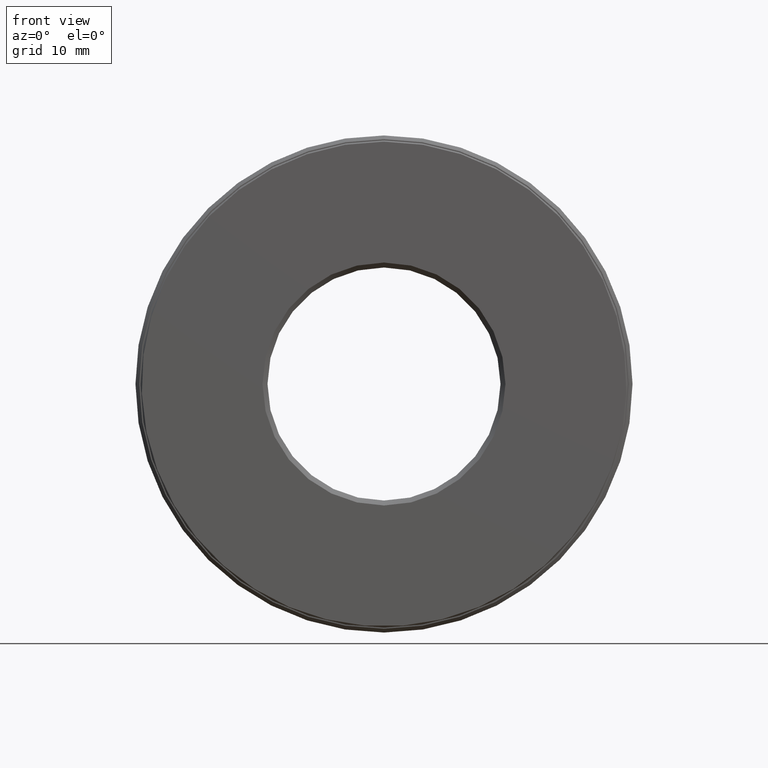
[diagram: clean part render]
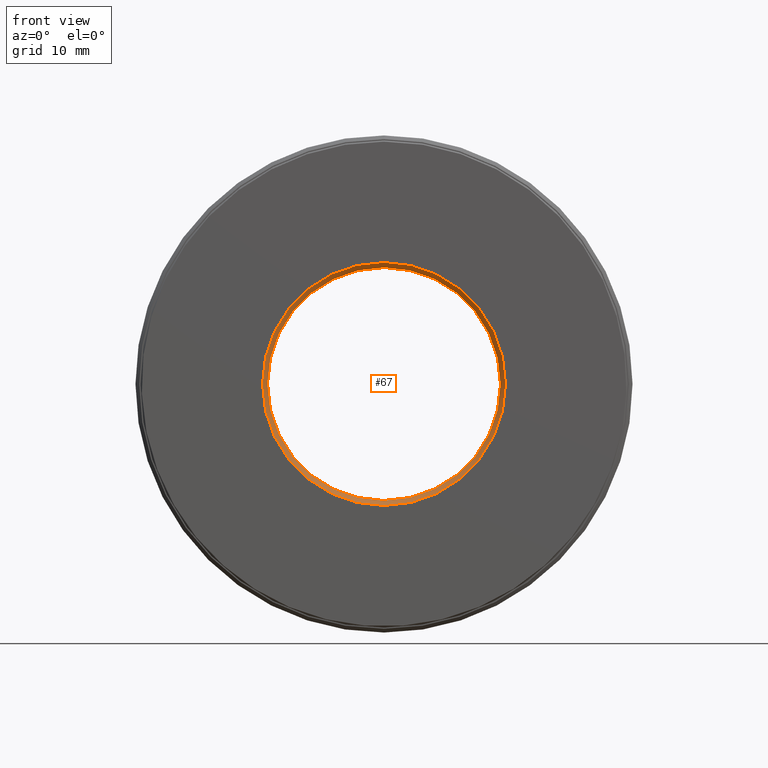
[diagram: same view with one face highlighted and labeled with its STEP entity id]
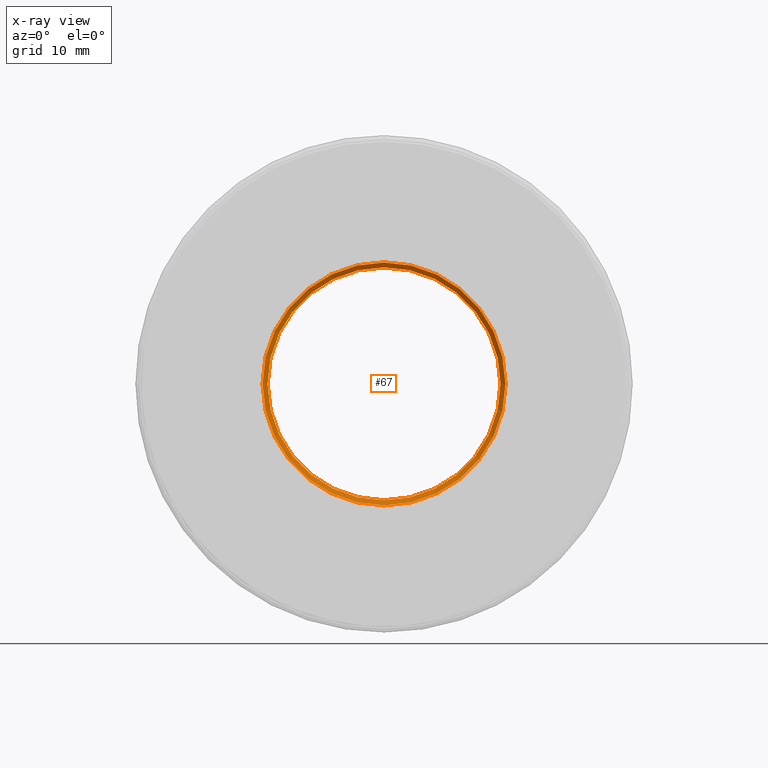
[diagram: x-ray of the same camera — body ghosted, the highlighted face saturated]
A machine part, front view. The second image highlights one B-rep face of the part: STEP entity #67.
The next image is the same camera in x-ray: the body ghosted, the highlighted face saturated — about 0% of this face is hidden behind the body in this view.
In plain terms, the highlighted conical surface has half-angle 45 deg.
Its self-contained STEP definition (entity closure, byte-faithful):
#49 = AXIS2_PLACEMENT_3D ( 'NONE', #418, #455, #141 ) ;
#67 = ADVANCED_FACE ( 'NONE', ( #324, #217 ), #426, .F. ) ;
#111 = EDGE_CURVE ( 'NONE', #138, #138, #438, .T. ) ;
#119 = CIRCLE ( 'NONE', #49, 0.4887500000000000700 ) ;
#138 = VERTEX_POINT ( 'NONE', #187 ) ;
#141 = DIRECTION ( 'NONE',  ( 0.0000000000000000000, 0.0000000000000000000, 1.000000000000000000 ) ) ;
#171 = DIRECTION ( 'NONE',  ( 0.0000000000000000000, 0.0000000000000000000, -1.000000000000000000 ) ) ;
#187 = CARTESIAN_POINT ( 'NONE',  ( 0.0000000000000000000, 0.02000000000000005900, 0.4687500000000000000 ) ) ;
#216 = DIRECTION ( 'NONE',  ( 0.0000000000000000000, -1.000000000000000000, 0.0000000000000000000 ) ) ;
#217 = FACE_BOUND ( 'NONE', #293, .T. ) ;
#240 = ORIENTED_EDGE ( 'NONE', *, *, #276, .F. ) ;
#242 = EDGE_LOOP ( 'NONE', ( #240 ) ) ;
#259 = DIRECTION ( 'NONE',  ( -0.0000000000000000000, 1.000000000000000000, -0.0000000000000000000 ) ) ;
#276 = EDGE_CURVE ( 'NONE', #511, #511, #119, .T. ) ;
#293 = EDGE_LOOP ( 'NONE', ( #469 ) ) ;
#296 = CARTESIAN_POINT ( 'NONE',  ( 0.0000000000000000000, 0.02000000000000005900, 0.0000000000000000000 ) ) ;
#324 = FACE_OUTER_BOUND ( 'NONE', #242, .T. ) ;
#362 = CARTESIAN_POINT ( 'NONE',  ( 0.0000000000000000000, 0.0000000000000000000, 0.4887500000000000700 ) ) ;
#374 = AXIS2_PLACEMENT_3D ( 'NONE', #296, #216, #171 ) ;
#418 = CARTESIAN_POINT ( 'NONE',  ( 0.0000000000000000000, 0.0000000000000000000, 0.0000000000000000000 ) ) ;
#426 = CONICAL_SURFACE ( 'NONE', #374, 0.4687500000000000000, 0.7853981633974482800 ) ;
#438 = CIRCLE ( 'NONE', #472, 0.4687500000000000000 ) ;
#455 = DIRECTION ( 'NONE',  ( -0.0000000000000000000, 1.000000000000000000, -0.0000000000000000000 ) ) ;
#469 = ORIENTED_EDGE ( 'NONE', *, *, #111, .T. ) ;
#472 = AXIS2_PLACEMENT_3D ( 'NONE', #490, #259, #580 ) ;
#490 = CARTESIAN_POINT ( 'NONE',  ( 0.0000000000000000000, 0.02000000000000005900, 0.0000000000000000000 ) ) ;
#511 = VERTEX_POINT ( 'NONE', #362 ) ;
#580 = DIRECTION ( 'NONE',  ( 0.0000000000000000000, 0.0000000000000000000, 1.000000000000000000 ) ) ;